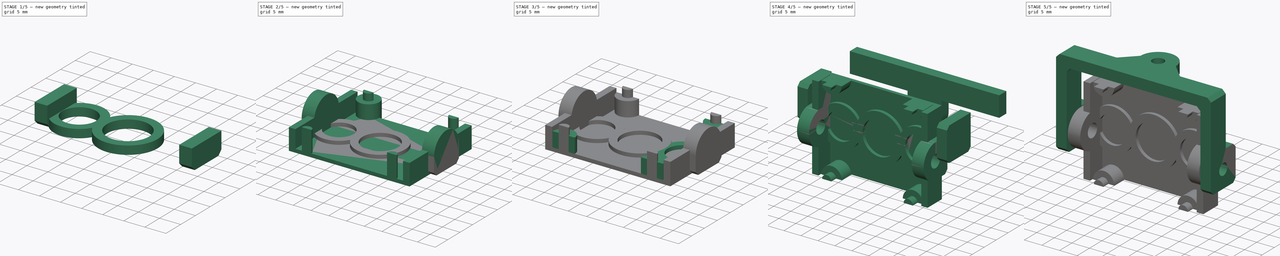
[diagram: build sequence overview — one tinted view per stage of 5, left to right]
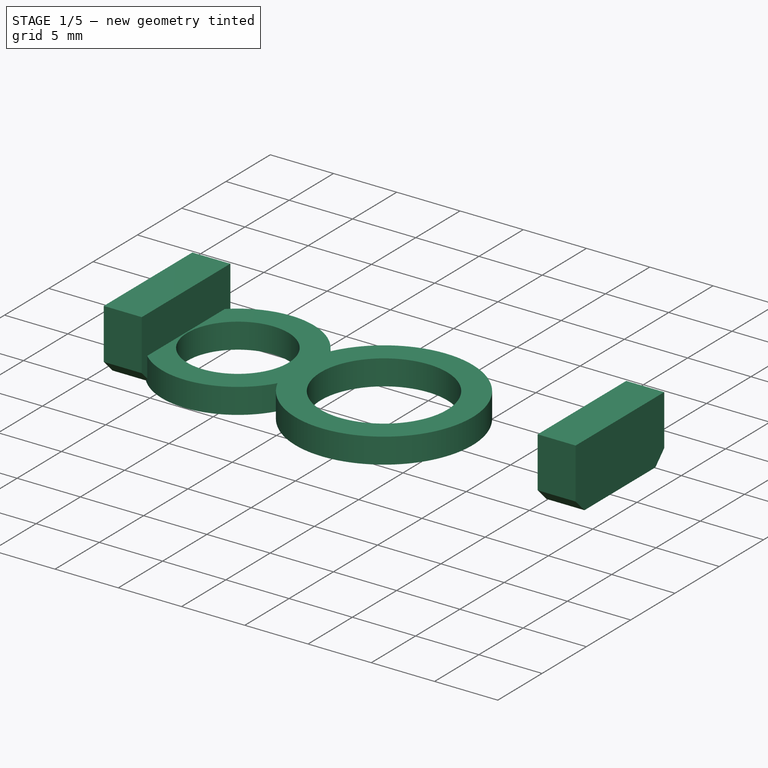
[diagram: stage 1 of 5 — iso view after this stage's code; geometry added in this stage tinted green]
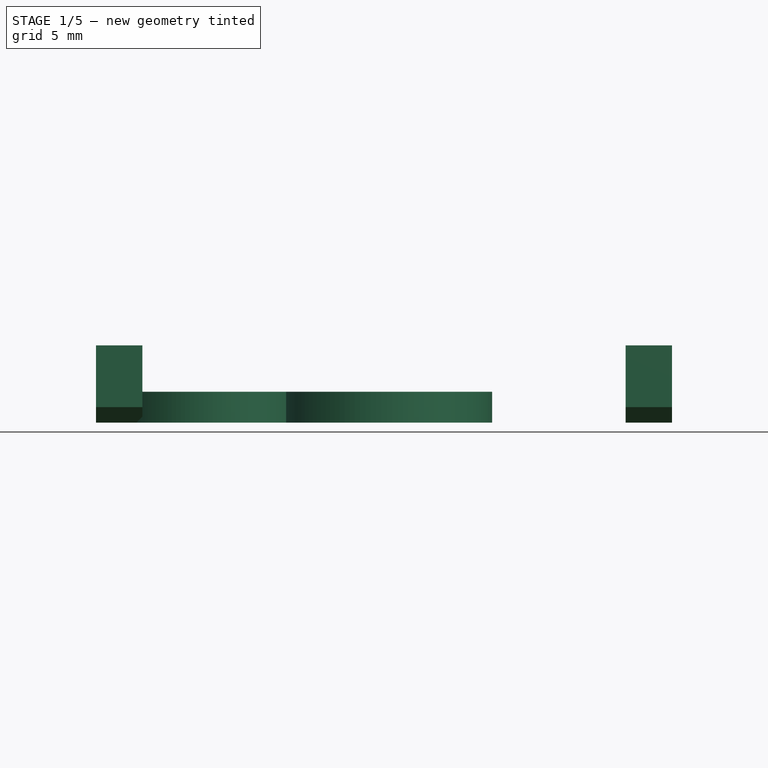
[diagram: stage 1 of 5 — front view after this stage's code; geometry added in this stage tinted green]
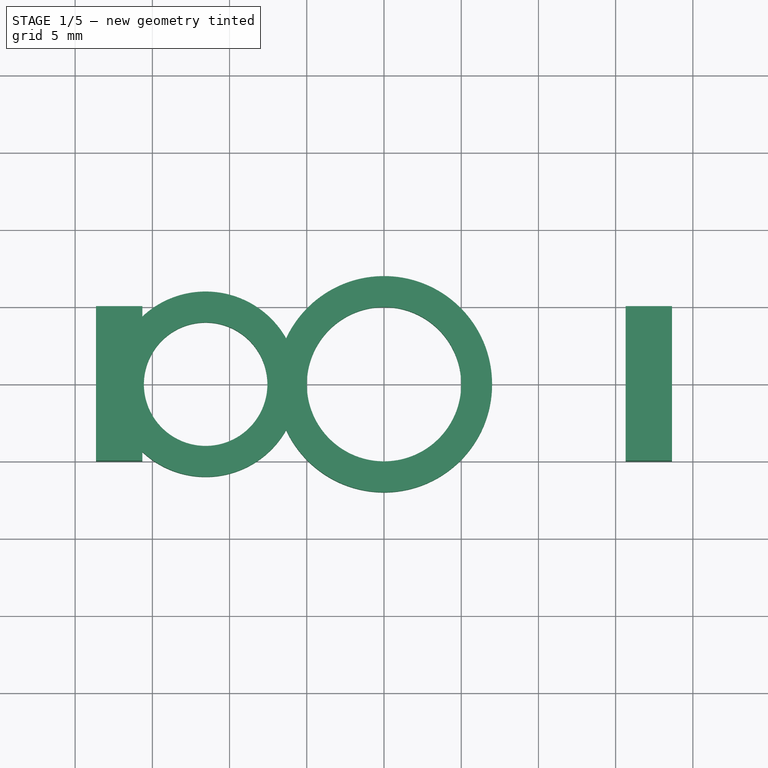
[diagram: stage 1 of 5 — top view after this stage's code; geometry added in this stage tinted green]
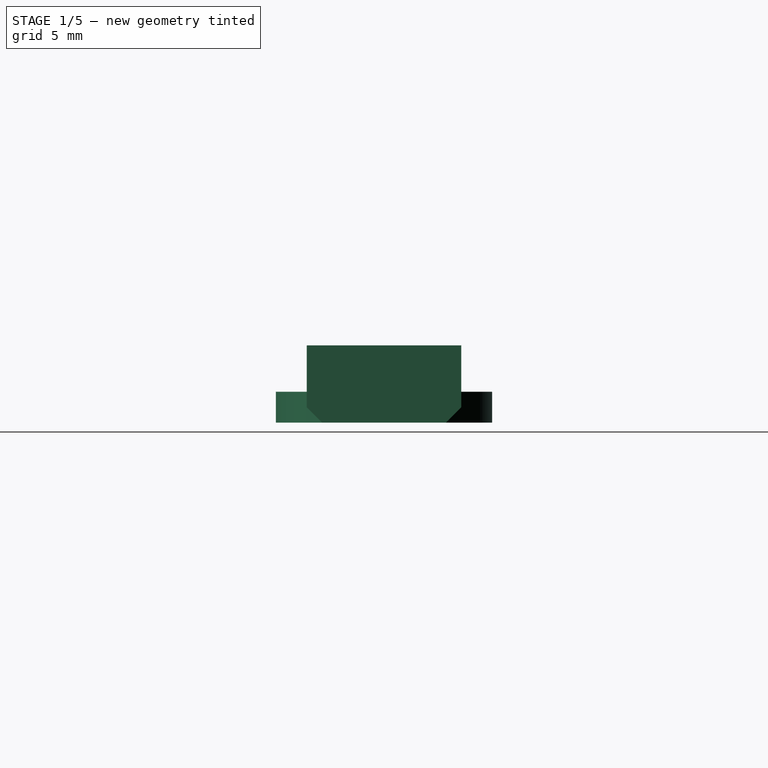
[diagram: stage 1 of 5 — right view after this stage's code; geometry added in this stage tinted green]
FCSTD DOCUMENT  (FreeCAD 0.18R16146 (Git))
Label: canera
License: Other
LicenseURL: GPL3
objects: Part::Cylinder×16, Part::Box×10, Part::MultiFuse×9, Part::Chamfer×6, Part::Cut×4, Sketcher::SketchObject×3, Part::Feature×3, PartDesign::Pad×2, Part::MultiCommon×2, PartDesign::Pocket×1, PartDesign::Body×1
note: 60 computed .brp shape members not serialized (recipe doc carries the construction recipe); baked Part::Feature solids carry a one-line shape summary decoded from their .brp

FEATURE [Part::Box] Box009  label="Cube009"
  AttacherType = Attacher::AttachEngine3D
  Height = 5
  Length = 3
  Placement = pos=(-18.65,-5,0) rot=(0,0,1;0rad)
  Width = 10
FEATURE [Part::Box] Box010  label="Cube010"
  AttacherType = Attacher::AttachEngine3D
  Height = 5
  Length = 3
  Placement = pos=(15.65,-5,0) rot=(0,0,1;0rad)
  Width = 10
FEATURE [Part::Chamfer] Chamfer005
  Base = -> Box010
  Edges = 2 edges r=1: [Edge9,Edge11]
FEATURE [Part::Chamfer] Chamfer006
  Base = -> Box009
  Edges = 2 edges r=1: [Edge9,Edge11]
FEATURE [Part::Cylinder] Cylinder014
  Angle = 360
  AttacherType = Attacher::AttachEngine3D
  Height = 2
  Radius = 7
FEATURE [Part::Cylinder] Cylinder015
  Angle = 360
  AttacherType = Attacher::AttachEngine3D
  Height = 2
  Radius = 5
FEATURE [Part::Cut] Cut002
  Base = -> Cylinder014
  Tool = -> Cylinder015
FEATURE [Part::Cylinder] Cylinder016
  Angle = 360
  AttacherType = Attacher::AttachEngine3D
  Height = 2
  Placement = pos=(-11.55,0,0) rot=(0,0,1;0rad)
  Radius = 4
FEATURE [Part::Cylinder] Cylinder017
  Angle = 360
  AttacherType = Attacher::AttachEngine3D
  Height = 2
  Placement = pos=(-11.55,0,0) rot=(0,0,1;0rad)
  Radius = 6
FEATURE [Part::Cut] Cut003
  Base = -> Cylinder017
  Tool = -> Cylinder016
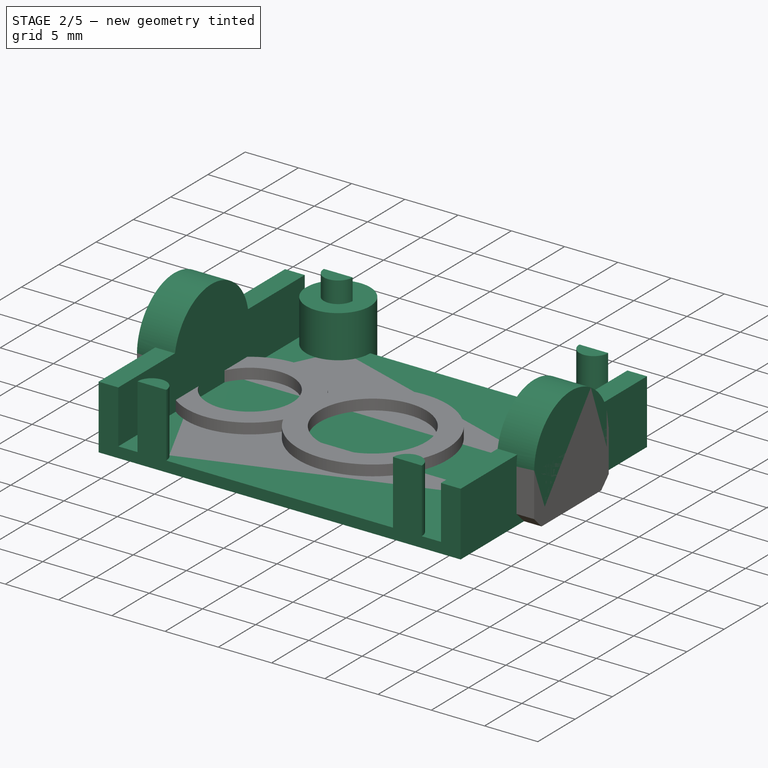
[diagram: stage 2 of 5 — iso view after this stage's code; geometry added in this stage tinted green]
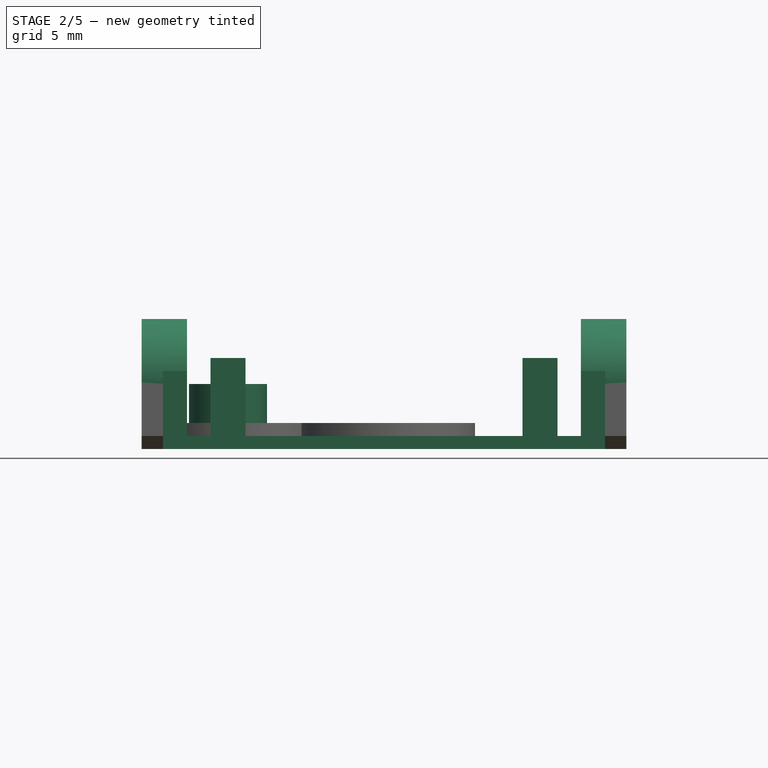
[diagram: stage 2 of 5 — front view after this stage's code; geometry added in this stage tinted green]
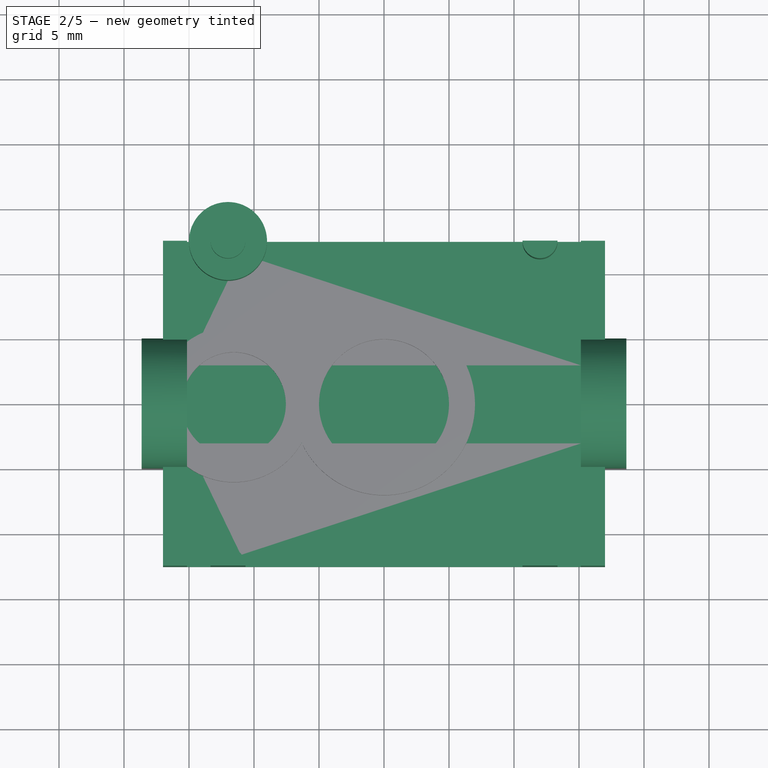
[diagram: stage 2 of 5 — top view after this stage's code; geometry added in this stage tinted green]
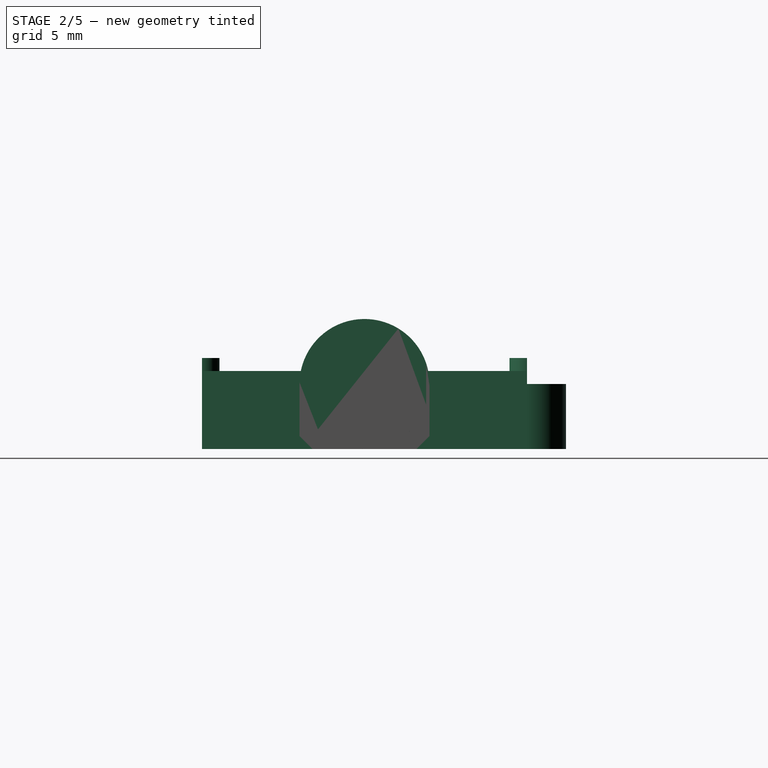
[diagram: stage 2 of 5 — right view after this stage's code; geometry added in this stage tinted green]
FEATURE [Sketcher::SketchObject] Sketch
  MapMode = 5
  Support = -> [XY_Plane]
  sketch-geometry (4):
    g0: LineSegment StartX=-17 StartY=12.5 StartZ=0 EndX=17 EndY=12.5 EndZ=0
    g1: LineSegment StartX=17 StartY=12.5 StartZ=0 EndX=17 EndY=-12.5 EndZ=0
    g2: LineSegment StartX=17 StartY=-12.5 StartZ=0 EndX=-17 EndY=-12.5 EndZ=0
    g3: LineSegment StartX=-17 StartY=-12.5 StartZ=0 EndX=-17 EndY=12.5 EndZ=0
  constraints (12):
    c: Coincident(g0,g1)
    c: Coincident(g1,g2)
    c: Coincident(g2,g3)
    c: Coincident(g3,g0)
    c: Horizontal(g0)
    c: Horizontal(g2)
    c: Vertical(g1)
    c: Vertical(g3)
    c: DistanceX(g0,g0) = 34
    c: DistanceY(g3,g3) = 25
    c: DistanceY(g-1,g0) = 12.5
    c: DistanceX(g2,g-1) = 17
FEATURE [PartDesign::Pad] Pad
  Length = 6
  Length2 = 100
  Profile = -> Sketch
  Type = 0
FEATURE [Sketcher::SketchObject] Sketch001
  MapMode = 5
  Placement = pos=(0,0,6) rot=(0,0,1;0rad)
  Support = -> [Pad]
  sketch-geometry (4):
    g0: LineSegment StartX=-15.15 StartY=12.5 StartZ=0 EndX=15.15 EndY=12.5 EndZ=0
    g1: LineSegment StartX=15.15 StartY=12.5 StartZ=0 EndX=15.15 EndY=-12.5 EndZ=0
    g2: LineSegment StartX=15.15 StartY=-12.5 StartZ=0 EndX=-15.15 EndY=-12.5 EndZ=0
    g3: LineSegment StartX=-15.15 StartY=-12.5 StartZ=0 EndX=-15.15 EndY=12.5 EndZ=0
  constraints (12):
    c: Coincident(g0,g1)
    c: Coincident(g1,g2)
    c: Coincident(g2,g3)
    c: Coincident(g3,g0)
    c: Horizontal(g0)
    c: Horizontal(g2)
    c: Vertical(g1)
    c: Vertical(g3)
    c: DistanceX(g0,g0) = 30.3
    c: DistanceY(g1,g1) = 25
    c: DistanceY(g1,g-1) = 12.5
    c: DistanceX(g-1,g0) = 15.15
FEATURE [PartDesign::Pocket] Pocket
  BaseFeature = -> Pad
  Length = 5
  Length2 = 100
  Profile = -> Sketch001
  Type = 0
FEATURE [Sketcher::SketchObject] Sketch002
  MapMode = 5
  Placement = pos=(0,0,1) rot=(0,0,1;0rad)
  Support = -> [Pocket]
  sketch-geometry (4):
    g0: Circle CenterX=-12 CenterY=12.5 CenterZ=0 NormalX=0 NormalY=0 NormalZ=1 AngleXU=0 Radius=1.35
    g1: Circle CenterX=12 CenterY=12.5 CenterZ=0 NormalX=0 NormalY=0 NormalZ=1 AngleXU=0 Radius=1.35
    g2: Circle CenterX=-12 CenterY=-12.5 CenterZ=0 NormalX=0 NormalY=0 NormalZ=1 AngleXU=0 Radius=1.35
    g3: Circle CenterX=12 CenterY=-12.5 CenterZ=0 NormalX=0 NormalY=0 NormalZ=1 AngleXU=0 Radius=1.35
  constraints (12):
    c: Radius(g0) = 1.35
    c: Radius(g2) = 1.35
    c: Radius(g3) = 1.35
    c: Radius(g1) = 1.35
    c: DistanceY(g-1,g0) = 12.5
    c: DistanceY(g-1,g1) = 12.5
    c: DistanceY(g2,g-1) = 12.5
    c: DistanceY(g3,g-1) = 12.5
    c: DistanceX(g0,g-1) = 12
    c: DistanceX(g-1,g1) = 12
    c: DistanceX(g2,g-1) = 12
    c: DistanceX(g-1,g3) = 12
FEATURE [PartDesign::Pad] Pad001
  BaseFeature = -> Pocket
  Length = 6
  Length2 = 100
  Profile = -> Sketch002
  Type = 0
FEATURE [PartDesign::Body] Body
  Group = -> [Sketch,Pad,Sketch001,Pocket,Sketch002,Pad001]
  Origin = -> Origin
  Tip = -> Pad001
FEATURE [Part::Box] Box  label="Cube"
  AttacherType = Attacher::AttachEngine3D
  Height = 10
  Length = 34
  Placement = pos=(-17,-12.5,0) rot=(0,0,1;0rad)
  Width = 25
FEATURE [Part::MultiCommon] Common
  Shapes = -> [Box,Body]
FEATURE [Part::Cylinder] Cylinder
  Angle = 360
  AttacherType = Attacher::AttachEngine3D
  Height = 3.5
  Placement = pos=(15.15,0,5) rot=(0,1,0;1.5708rad)
  Radius = 5
FEATURE [Part::Cylinder] Cylinder004
  Angle = 360
  AttacherType = Attacher::AttachEngine3D
  Height = 3.5
  Placement = pos=(-18.65,0,5) rot=(0,1,0;1.5708rad)
  Radius = 5
FEATURE [Part::Cylinder] Cylinder013
  Angle = 360
  AttacherType = Attacher::AttachEngine3D
  Height = 5
  Placement = pos=(-12,12.5,0) rot=(0,0,1;0rad)
  Radius = 3
FEATURE [Part::MultiFuse] Fusion006
  Shapes = -> [Cylinder004,Cylinder]
FEATURE [Part::MultiFuse] Fusion007
  Shapes = -> [Fusion006,Common]
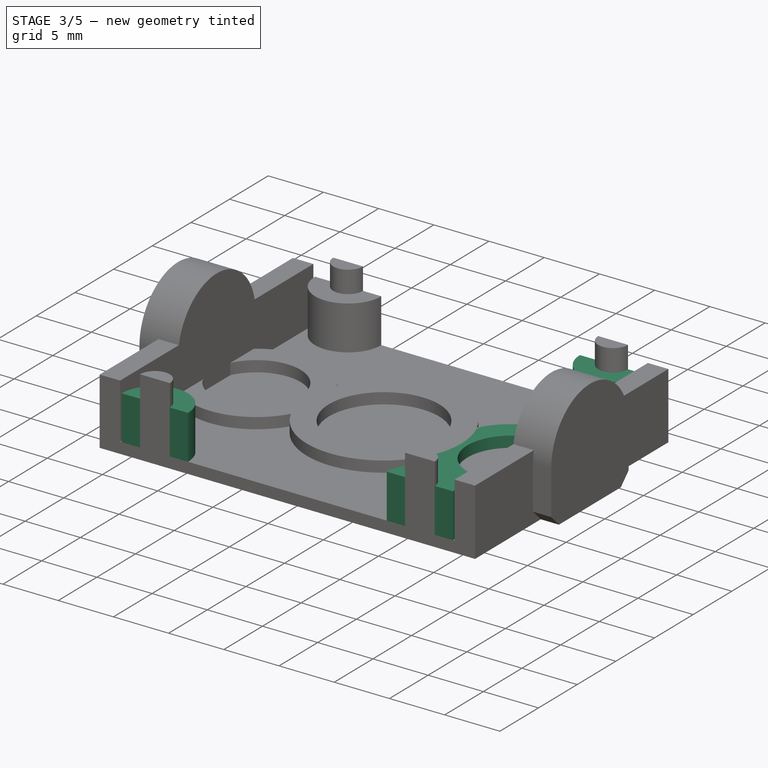
[diagram: stage 3 of 5 — iso view after this stage's code; geometry added in this stage tinted green]
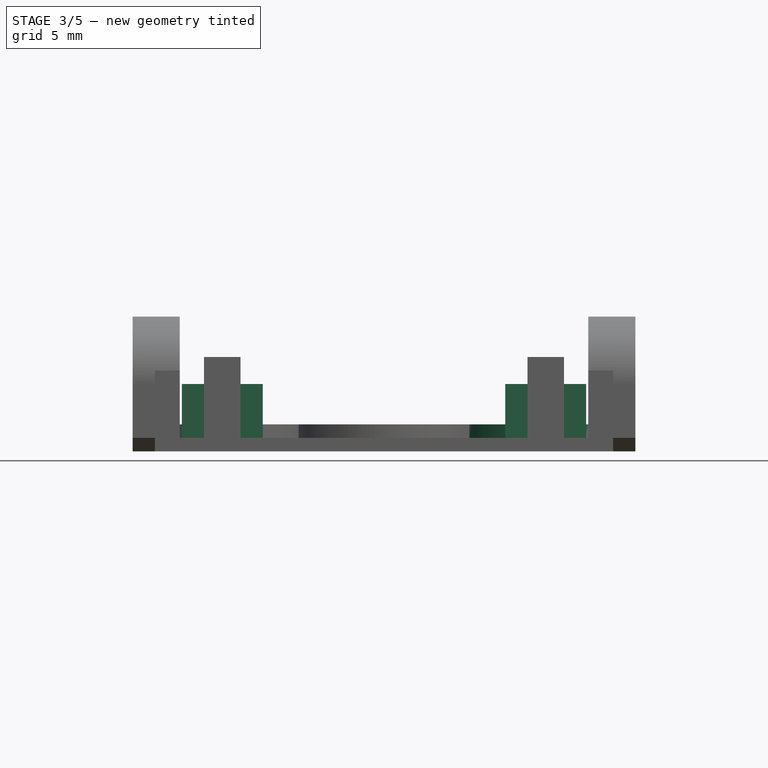
[diagram: stage 3 of 5 — front view after this stage's code; geometry added in this stage tinted green]
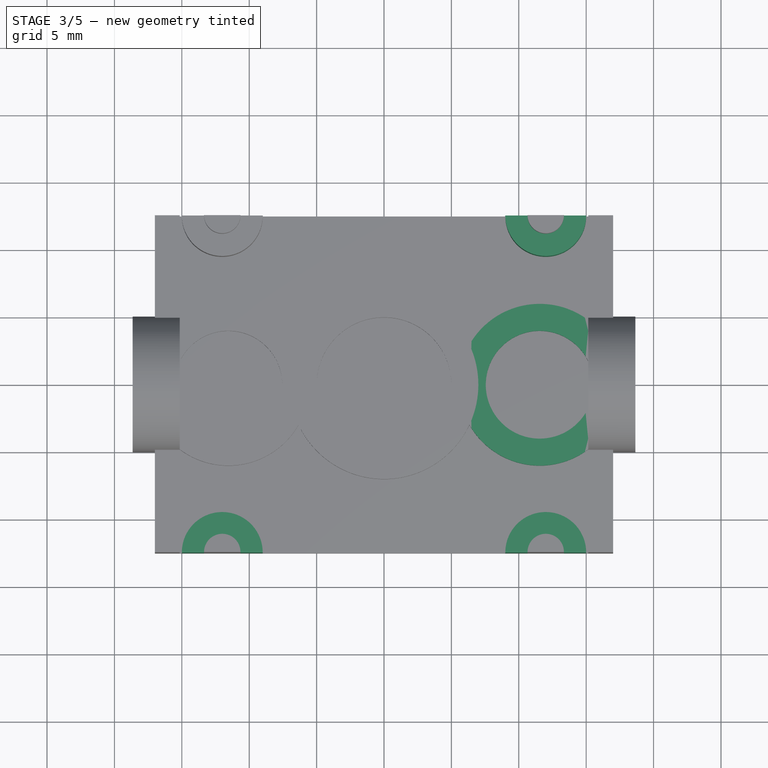
[diagram: stage 3 of 5 — top view after this stage's code; geometry added in this stage tinted green]
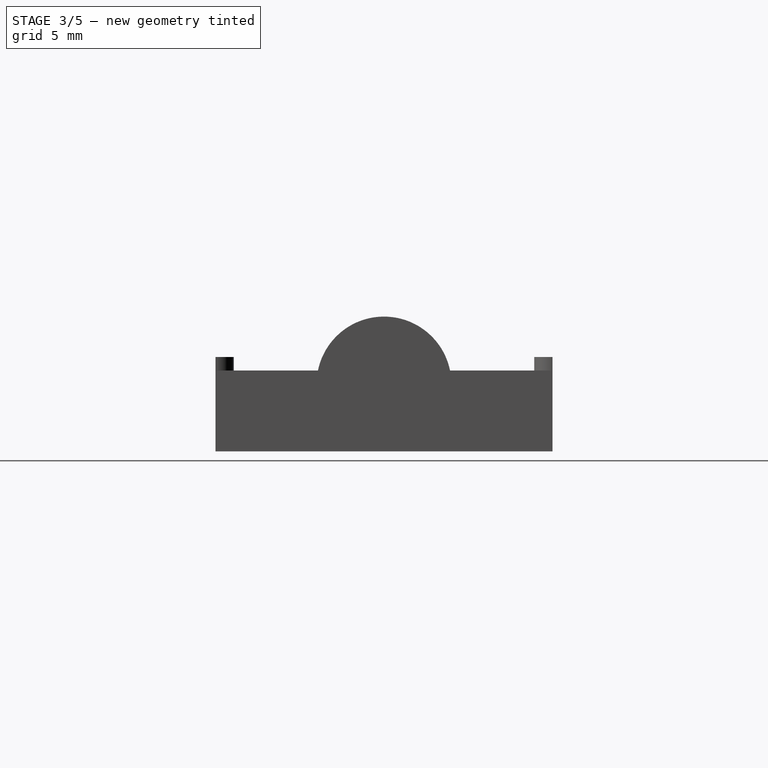
[diagram: stage 3 of 5 — right view after this stage's code; geometry added in this stage tinted green]
FEATURE [Part::Box] Box001  label="Cube001"
  AttacherType = Attacher::AttachEngine3D
  Height = 10
  Length = 34
  Placement = pos=(-17,-12.5,0) rot=(0,0,1;0rad)
  Width = 25
FEATURE [Part::Cylinder] Cylinder001
  Angle = 360
  AttacherType = Attacher::AttachEngine3D
  Height = 5
  Placement = pos=(12,-12.5,0) rot=(0,0,1;0rad)
  Radius = 3
FEATURE [Part::Cylinder] Cylinder002
  Angle = 360
  AttacherType = Attacher::AttachEngine3D
  Height = 5
  Placement = pos=(-12,-12.5,0) rot=(0,0,1;0rad)
  Radius = 3
FEATURE [Part::Cylinder] Cylinder003
  Angle = 360
  AttacherType = Attacher::AttachEngine3D
  Height = 5
  Placement = pos=(12,12.5,0) rot=(0,0,1;0rad)
  Radius = 3
FEATURE [Part::Cylinder] Cylinder006
  Angle = 360
  AttacherType = Attacher::AttachEngine3D
  Height = 3.5
  Placement = pos=(15.15,0,5) rot=(0,1,0;1.5708rad)
  Radius = 1.9
FEATURE [Part::MultiFuse] Fusion
  Shapes = -> [Cylinder013,Cylinder001,Cylinder002,Cylinder003]
FEATURE [Part::MultiCommon] Common001
  Shapes = -> [Box001,Fusion]
FEATURE [Part::MultiFuse] Fusion008
  Shapes = -> [Common001,Fusion007]
FEATURE [Part::MultiFuse] Fusion010
  Shapes = -> [Chamfer006,Chamfer005,Fusion008]
FEATURE [Part::MultiFuse] Fusion012
  Shapes = -> [Cut003001,Cut002,Cut003,Fusion010]
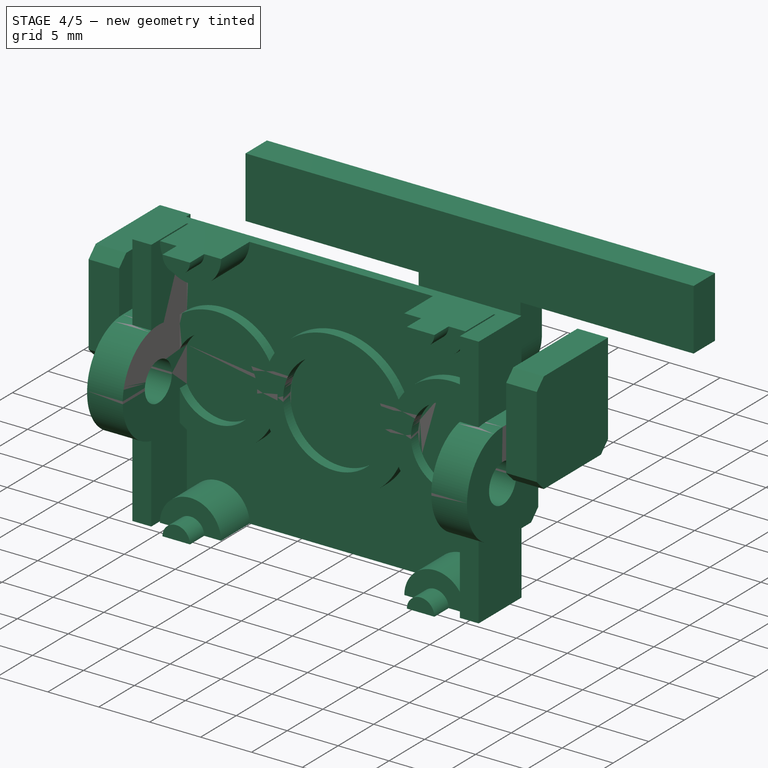
[diagram: stage 4 of 5 — iso view after this stage's code; geometry added in this stage tinted green]
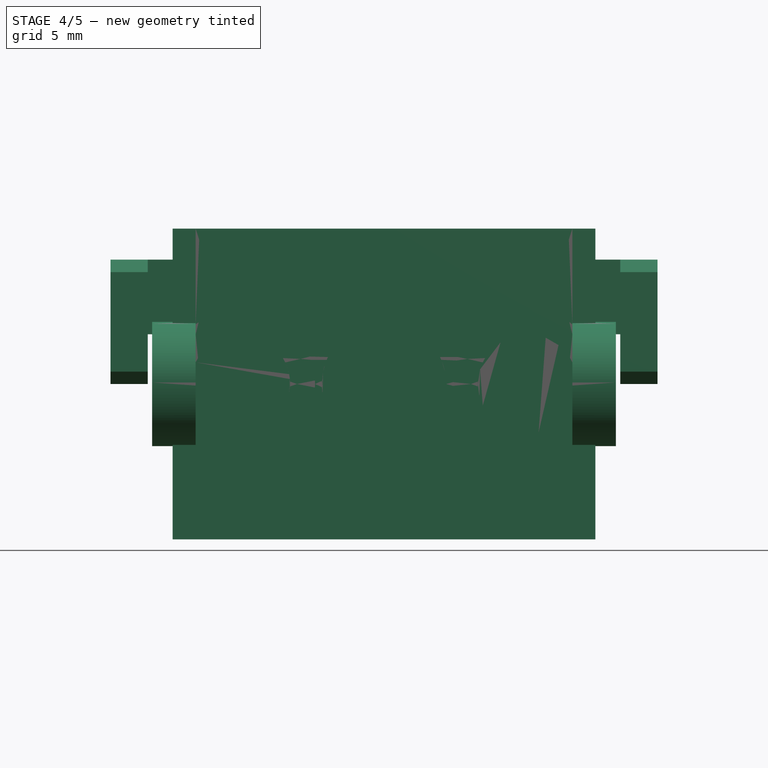
[diagram: stage 4 of 5 — front view after this stage's code; geometry added in this stage tinted green]
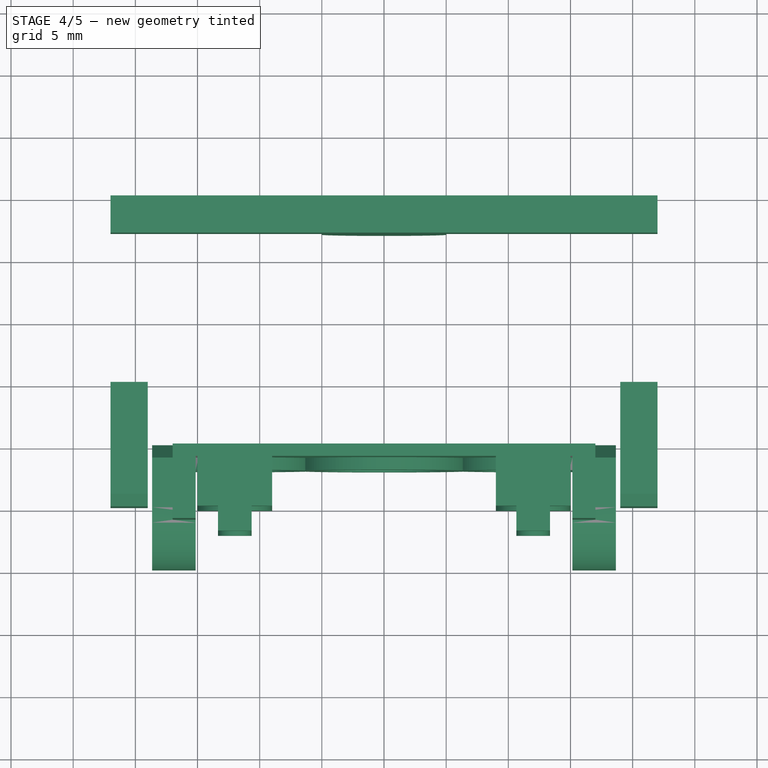
[diagram: stage 4 of 5 — top view after this stage's code; geometry added in this stage tinted green]
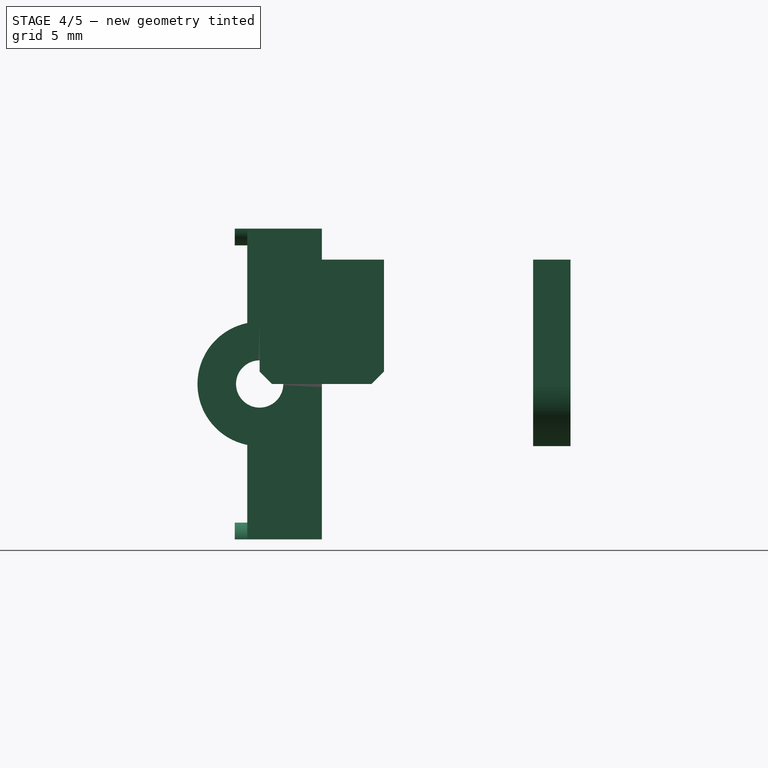
[diagram: stage 4 of 5 — right view after this stage's code; geometry added in this stage tinted green]
FEATURE [Part::Cylinder] Cylinder005
  Angle = 360
  AttacherType = Attacher::AttachEngine3D
  Height = 3.5
  Placement = pos=(-18.65,0,5) rot=(0,1,0;1.5708rad)
  Radius = 1.9
FEATURE [Part::Box] Box004  label="Cube004"
  AttacherType = Attacher::AttachEngine3D
  Height = 6
  Length = 44
  Placement = pos=(-22,17,4) rot=(0,0,1;0rad)
  Width = 3
FEATURE [Part::Cylinder] Cylinder011
  Angle = 360
  AttacherType = Attacher::AttachEngine3D
  Height = 3
  Placement = pos=(0,17,-4e-15) rot=(-1,0,0;1.5708rad)
  Radius = 5
FEATURE [Part::Box] Box005  label="Cube005"
  AttacherType = Attacher::AttachEngine3D
  Height = 10
  Length = 10
  Placement = pos=(-5,17,0) rot=(0,0,1;0rad)
  Width = 3
FEATURE [Part::Box] Box006  label="Cube006"
  AttacherType = Attacher::AttachEngine3D
  Height = 10
  Length = 3
  Placement = pos=(-22,-5,0) rot=(0,0,1;0rad)
  Width = 10
FEATURE [Part::Box] Box007  label="Cube007"
  AttacherType = Attacher::AttachEngine3D
  Height = 10
  Length = 3
  Placement = pos=(19,-5,0) rot=(0,0,1;0rad)
  Width = 10
FEATURE [Part::Chamfer] Chamfer002
  Base = -> Box006
  Edges = 3 edges r=1: [Edge9,Edge10,Edge11]
FEATURE [Part::Chamfer] Chamfer003
  Base = -> Box007
  Edges = 3 edges r=1: [Edge9,Edge10,Edge11]
FEATURE [Part::Feature] Cut003001  label="Cut004"
  Placement = pos=(23.1,0,0) rot=(0,0,1;0rad)
  shape: bbox 12 x 12 x 2 mm, 4 faces (baked)
FEATURE [Part::MultiFuse] Fusion011
  Shapes = -> [Cylinder005,Cylinder006]
FEATURE [Part::Cut] Cut
  Base = -> Fusion012
  Placement = pos=(0,0,0) rot=(1,0,0;1.5708rad)
  Tool = -> Fusion011
FEATURE [Part::Feature] Cut003002  label="Cut005"
  Placement = pos=(0,0,0) rot=(1,0,0;1.5708rad)
  shape: bbox 37.3 x 10 x 25 mm, 128 faces (baked)
FEATURE [Part::Feature] Chamfer004001  label="Chamfer007"
  Placement = pos=(0,0,0) rot=(1,0,0;1.5708rad)
  shape: bbox 44 x 15 x 25 mm, 67 faces (baked)
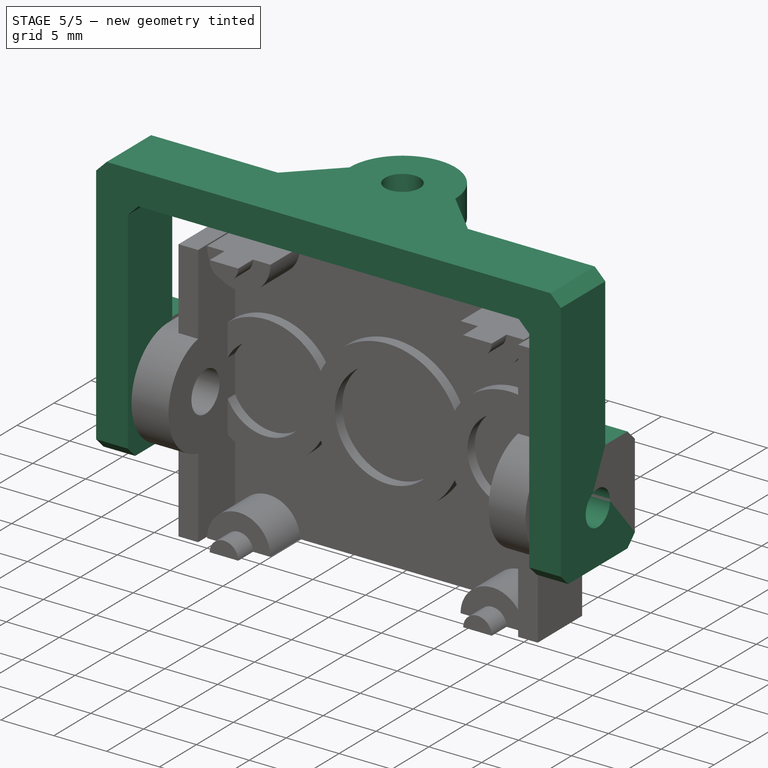
[diagram: stage 5 of 5 — iso view after this stage's code; geometry added in this stage tinted green]
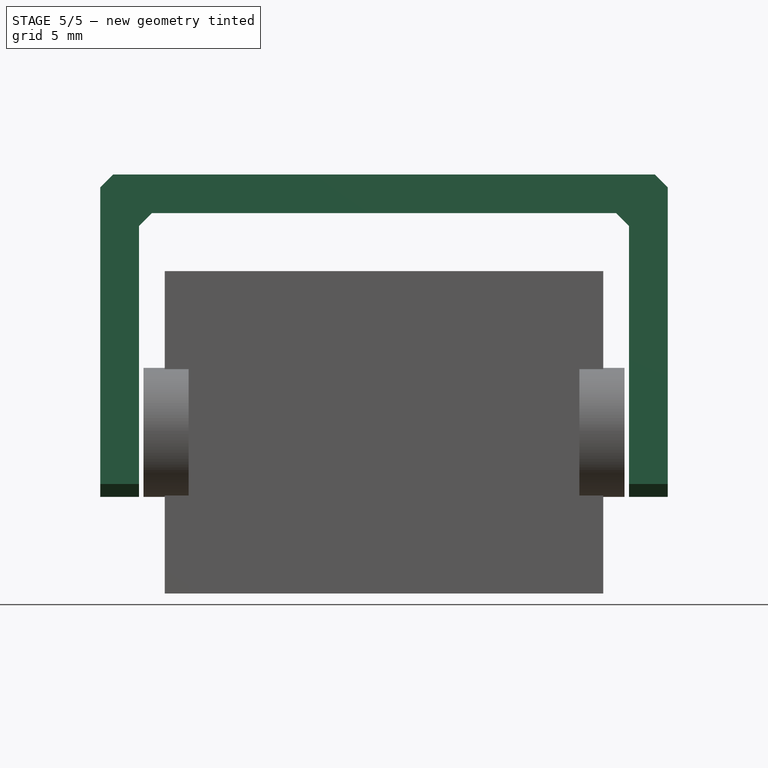
[diagram: stage 5 of 5 — front view after this stage's code; geometry added in this stage tinted green]
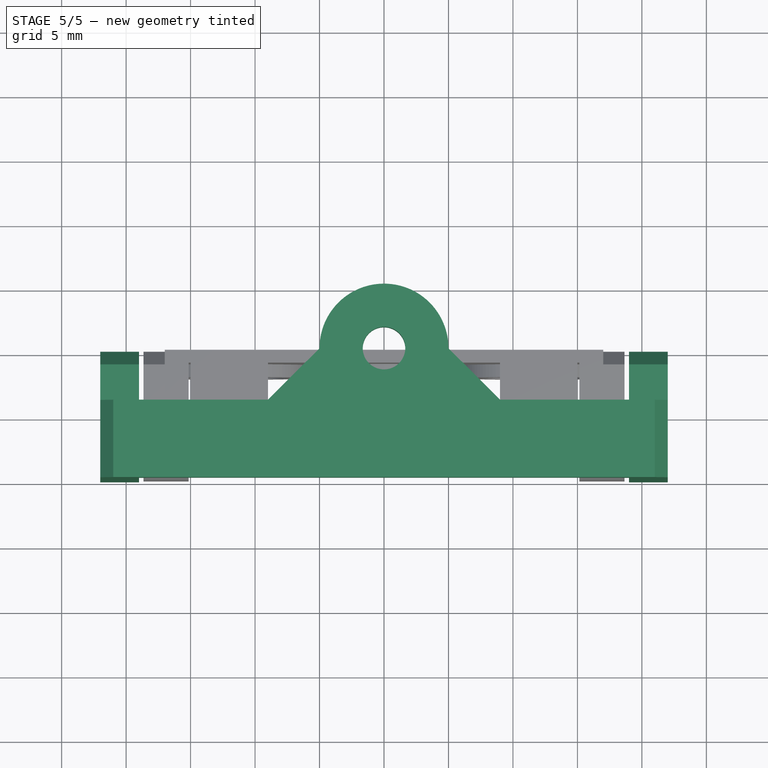
[diagram: stage 5 of 5 — top view after this stage's code; geometry added in this stage tinted green]
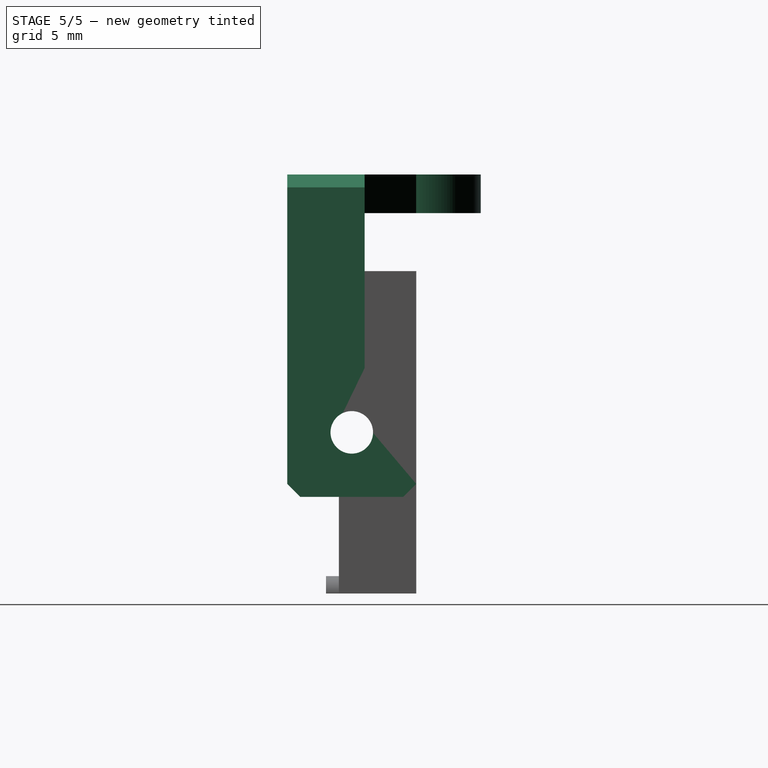
[diagram: stage 5 of 5 — right view after this stage's code; geometry added in this stage tinted green]
FEATURE [Part::Cylinder] Cylinder007
  Angle = 360
  AttacherType = Attacher::AttachEngine3D
  Height = 3
  Placement = pos=(22,0,5) rot=(0,-1,0;1.5708rad)
  Radius = 1.65
FEATURE [Part::Cylinder] Cylinder008
  Angle = 360
  AttacherType = Attacher::AttachEngine3D
  Height = 3
  Placement = pos=(-19,0,5) rot=(0,-1,0;1.5708rad)
  Radius = 1.65
FEATURE [Part::Box] Box002  label="Cube002"
  AttacherType = Attacher::AttachEngine3D
  Height = 6
  Length = 3
  Placement = pos=(-22,0,4) rot=(0,0,1;0rad)
  Width = 17
FEATURE [Part::Box] Box003  label="Cube003"
  AttacherType = Attacher::AttachEngine3D
  Height = 6
  Length = 3
  Placement = pos=(19,0,4) rot=(0,0,1;0rad)
  Width = 17
FEATURE [Part::Cylinder] Cylinder012
  Angle = 360
  AttacherType = Attacher::AttachEngine3D
  Height = 3
  Placement = pos=(0,17,-4e-15) rot=(-1,0,0;1.5708rad)
  Radius = 1.65
FEATURE [Part::MultiFuse] Fusion005
  Shapes = -> [Cylinder012,Cylinder008,Cylinder007]
FEATURE [Part::MultiFuse] Fusion009
  Shapes = -> [Chamfer003,Chamfer002,Box005,Cylinder011,Box004,Box003,Box002]
FEATURE [Part::Cut] Cut001
  Base = -> Fusion009
  Tool = -> Fusion005
FEATURE [Part::Chamfer] Chamfer
  Base = -> Cut001
  Edges = 4 edges r=1: [Edge28,Edge32,Edge52,Edge65]
FEATURE [Part::Chamfer] Chamfer004
  Base = -> Chamfer
  Edges = 2 edges r=3.99: [Edge6,Edge94]
  Placement = pos=(0,0,0) rot=(1,0,0;1.5708rad)
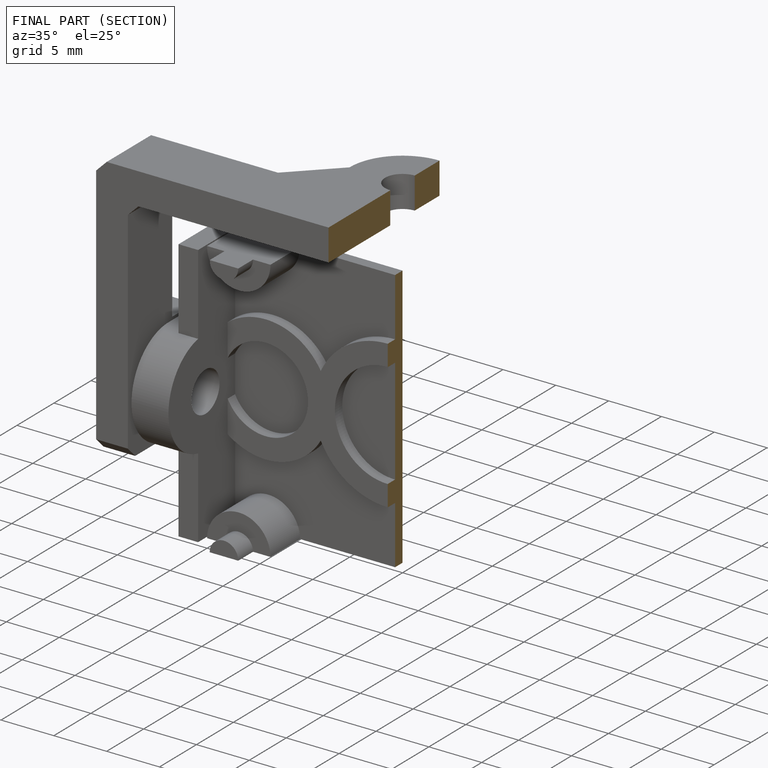
[diagram: finished part — half-section view (interior)]
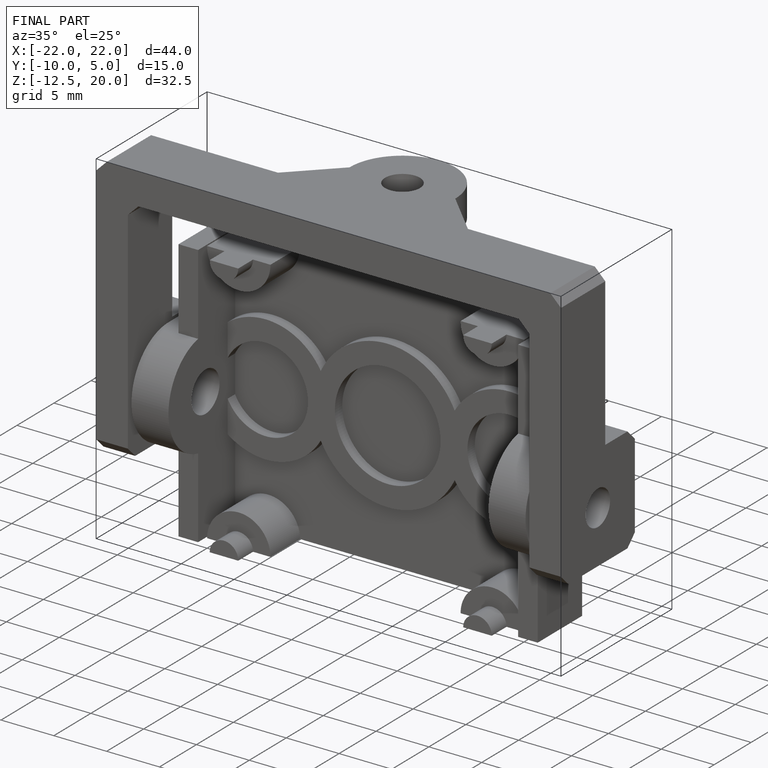
[diagram: finished part — iso view with bounding-box wireframe]
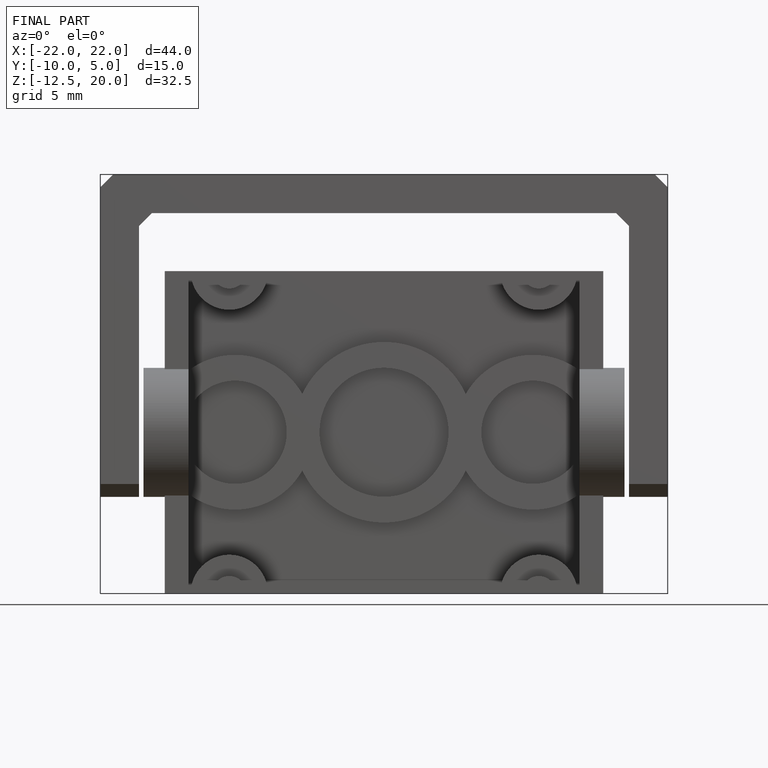
[diagram: finished part — front view with bounding-box wireframe]
